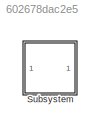
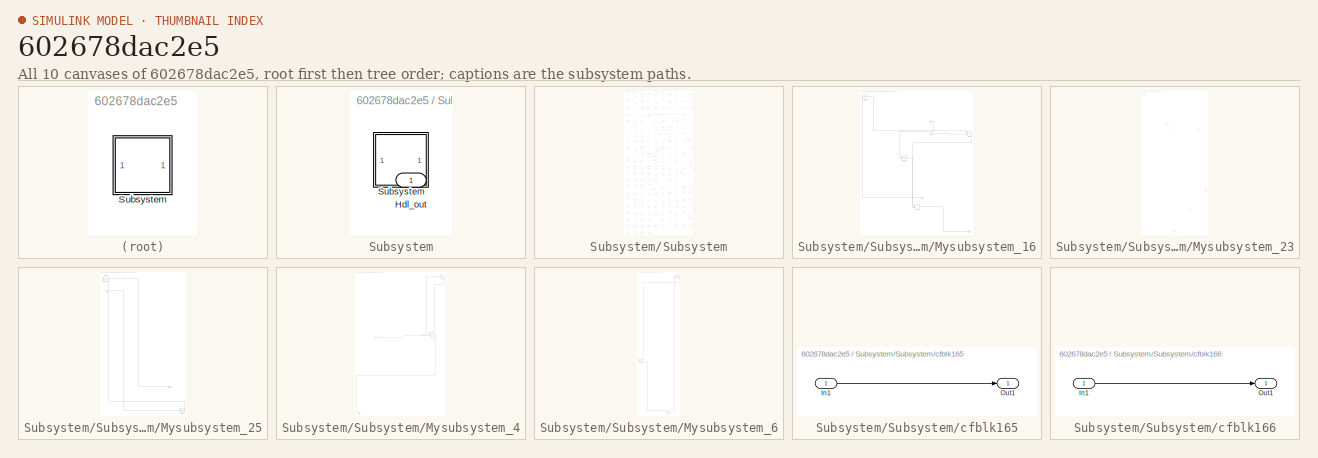
[diagram: thumbnail index - all 10 canvases of the model, root first then tree order]
MODEL slx_602678dac2e5
KIND model
CONFIG AbsTol = auto
CONFIG EnableMultiTasking = off
CONFIG FixedStep = auto
CONFIG MaxStep = auto
CONFIG MinStep = auto
CONFIG RelTol = 1e-3
CONFIG SampleTimeConstraint = Unconstrained
CONFIG SolverName = VariableStepAuto
CONFIG StartTime = 0.0
CONFIG StopTime = 10.0
BLOCK [SubSystem] Subsystem
BLOCK [Outport] Subsystem/Hdl_out
  OutDataTypeStr = uint8
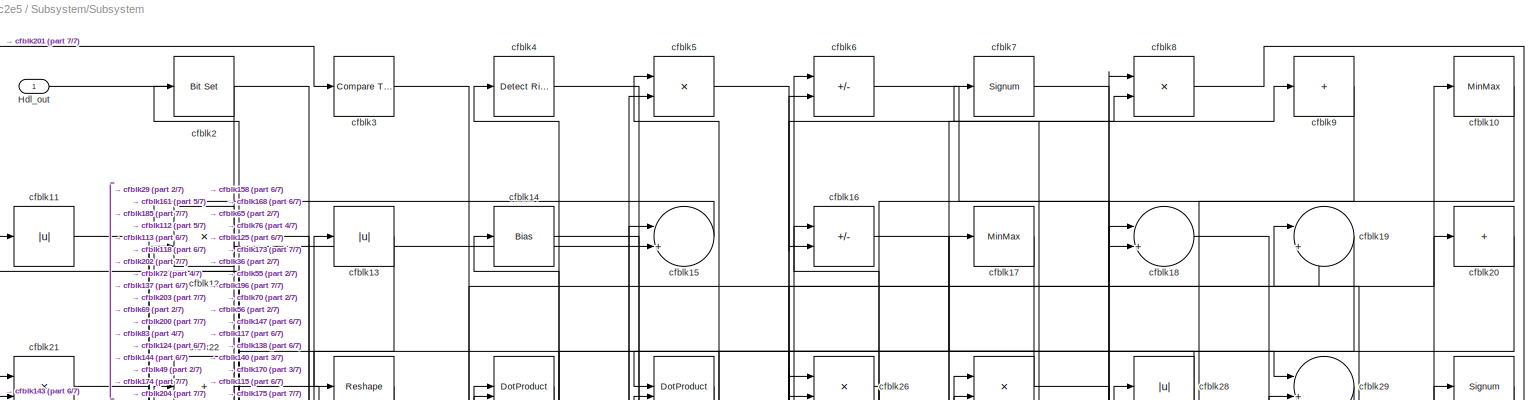
[diagram: Subsystem/Subsystem - part 1/7, full width, top band]
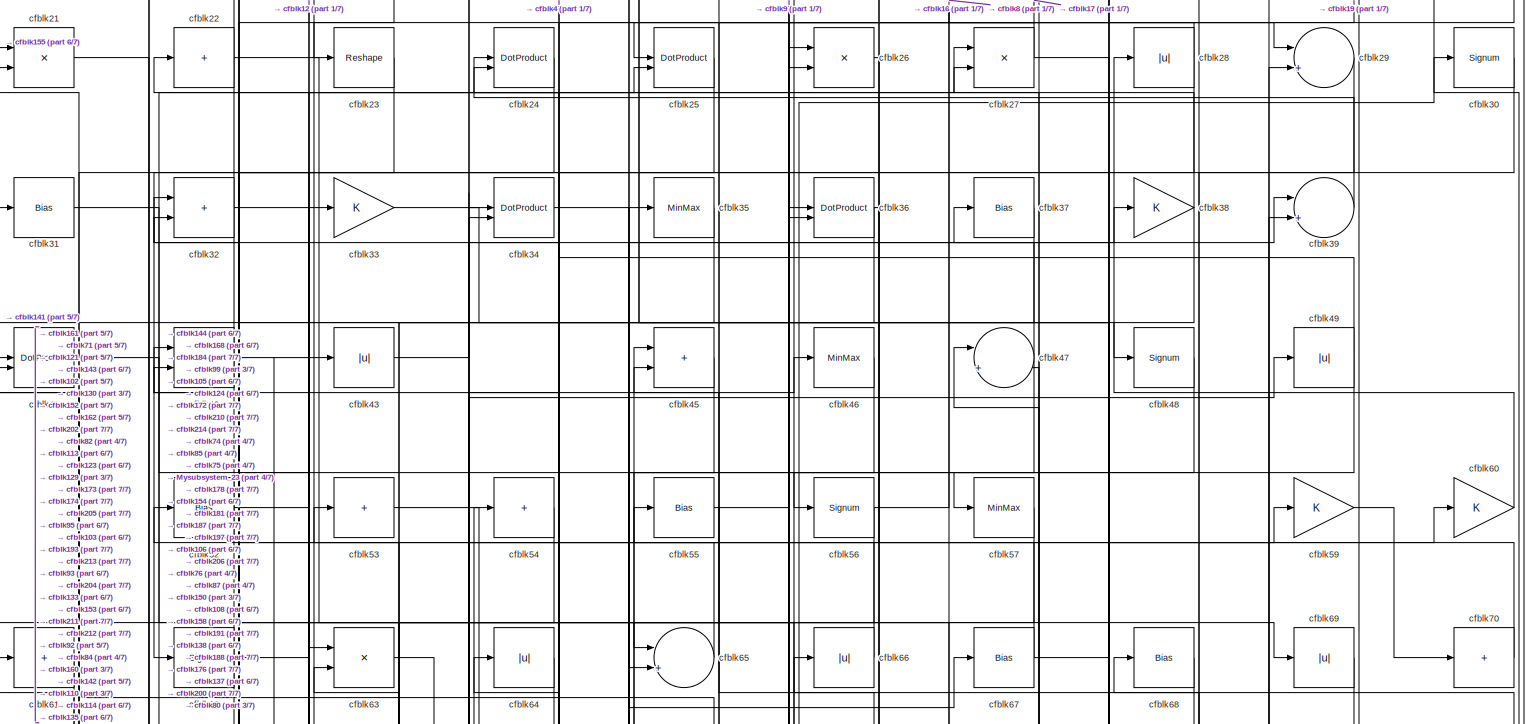
[diagram: Subsystem/Subsystem - part 2/7, full width, top band]
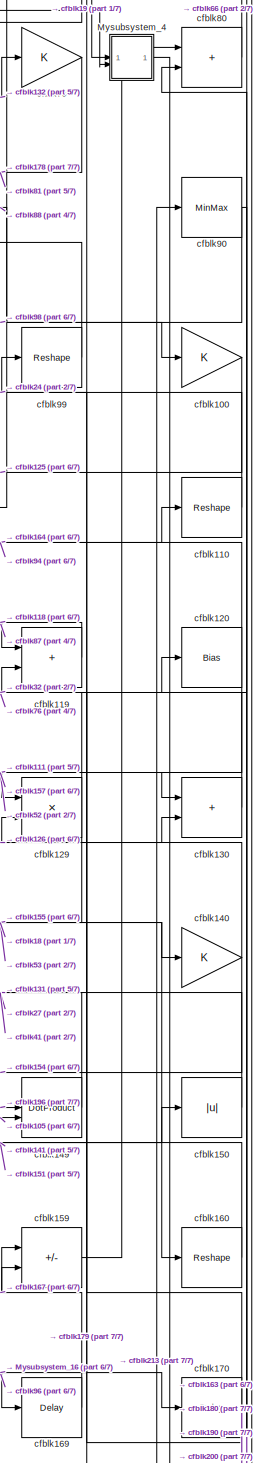
[diagram: Subsystem/Subsystem - part 3/7, middle right region]
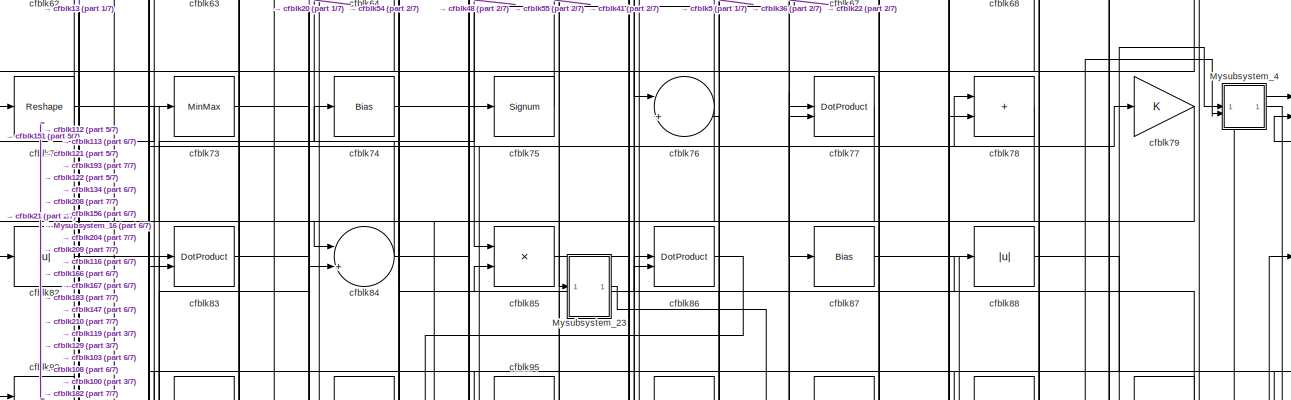
[diagram: Subsystem/Subsystem - part 4/7, full width, middle band]
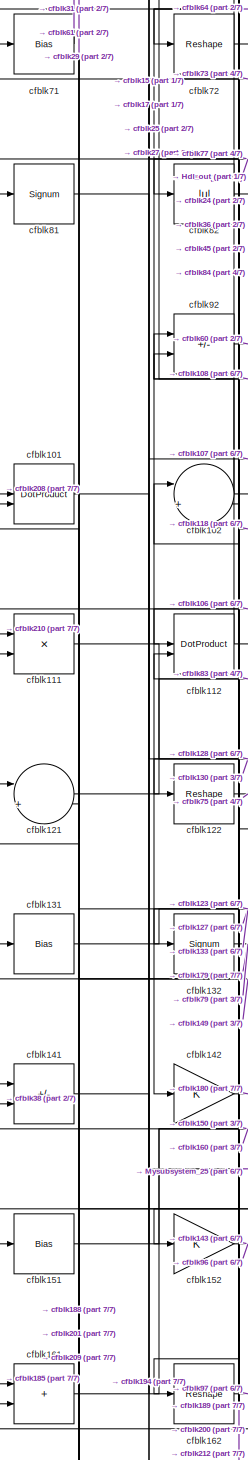
[diagram: Subsystem/Subsystem - part 5/7, middle left region]
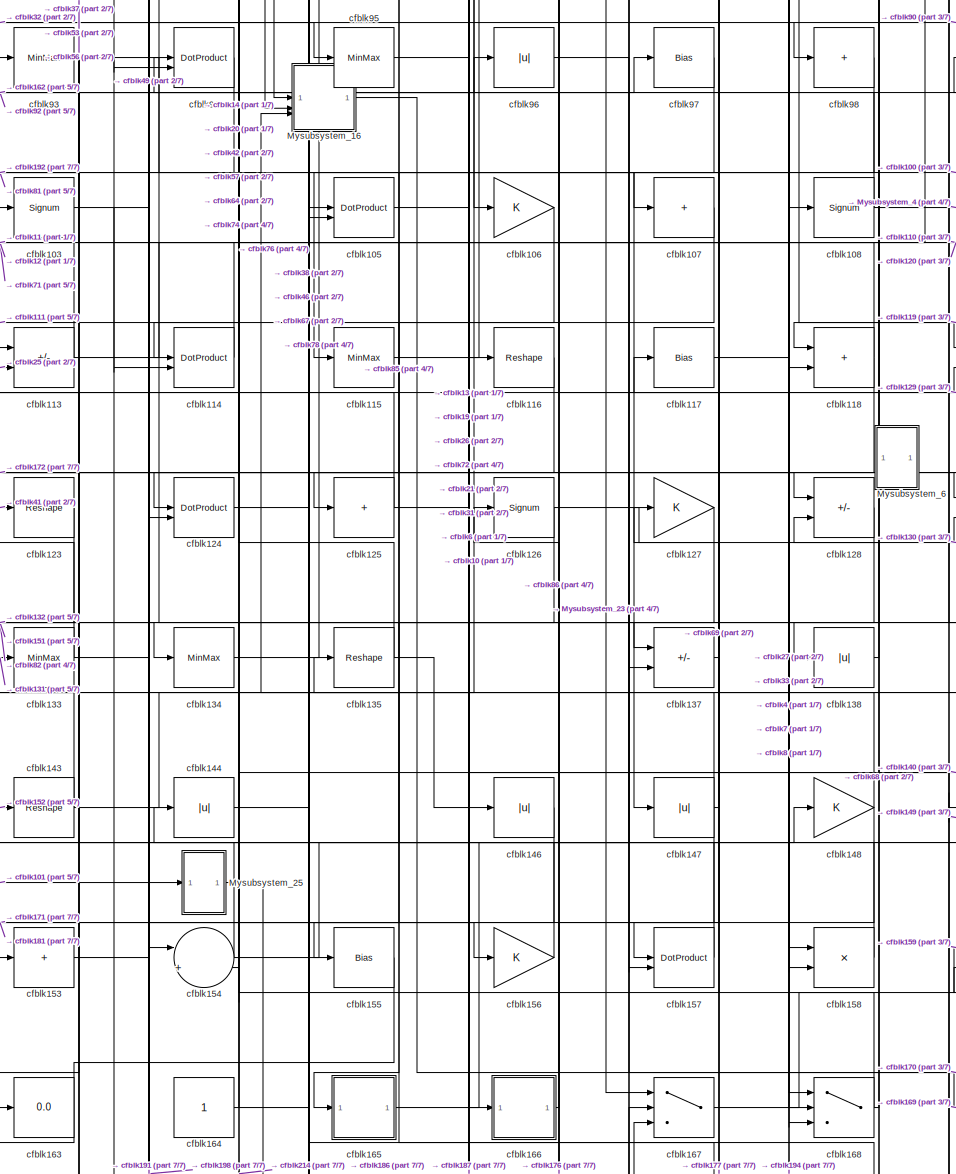
[diagram: Subsystem/Subsystem - part 6/7, central region]
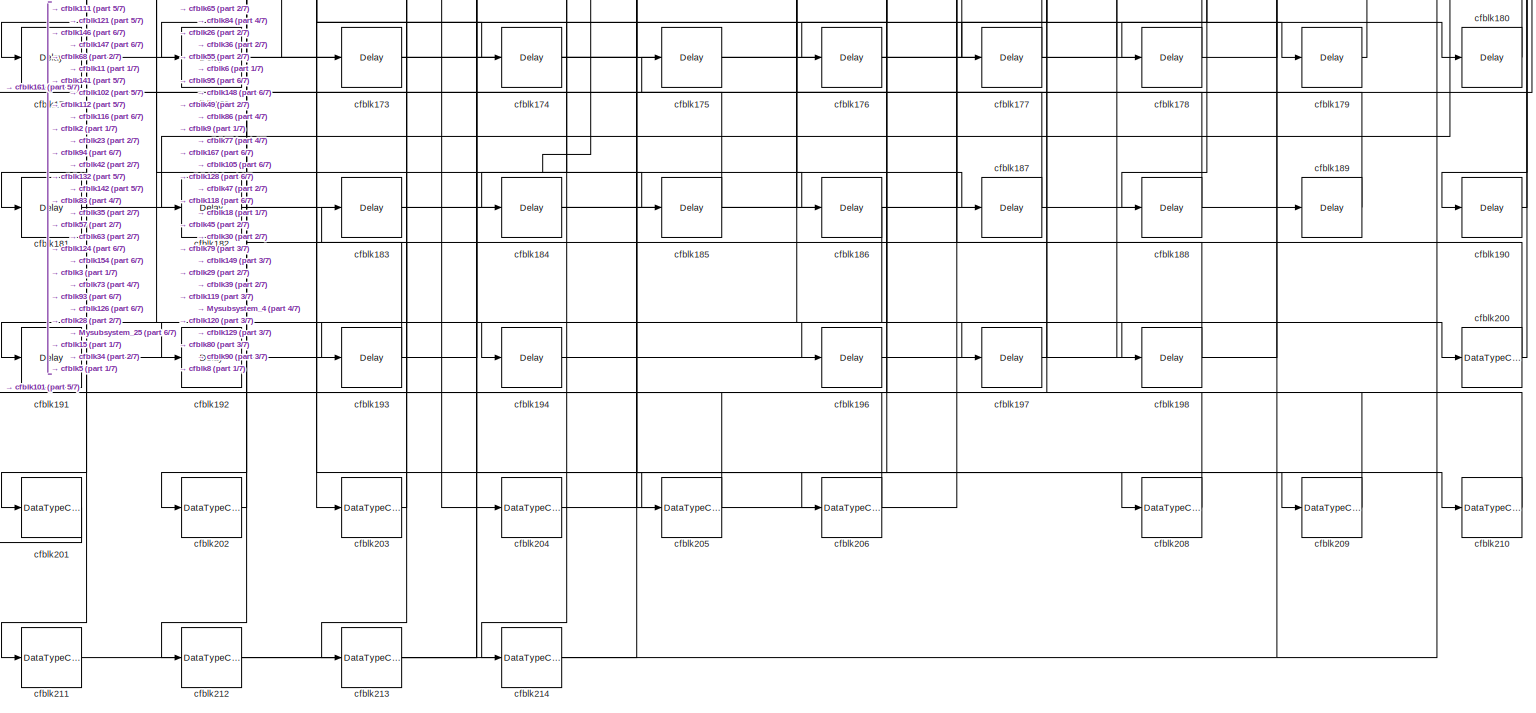
[diagram: Subsystem/Subsystem - part 7/7, full width, bottom band]
BLOCK [SubSystem] Subsystem/Subsystem
BLOCK [Outport] Subsystem/Subsystem/Hdl_out
  OutDataTypeStr = uint8
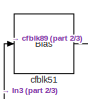
[diagram: Subsystem/Subsystem/Mysubsystem_16 - part 1/3, top left region]
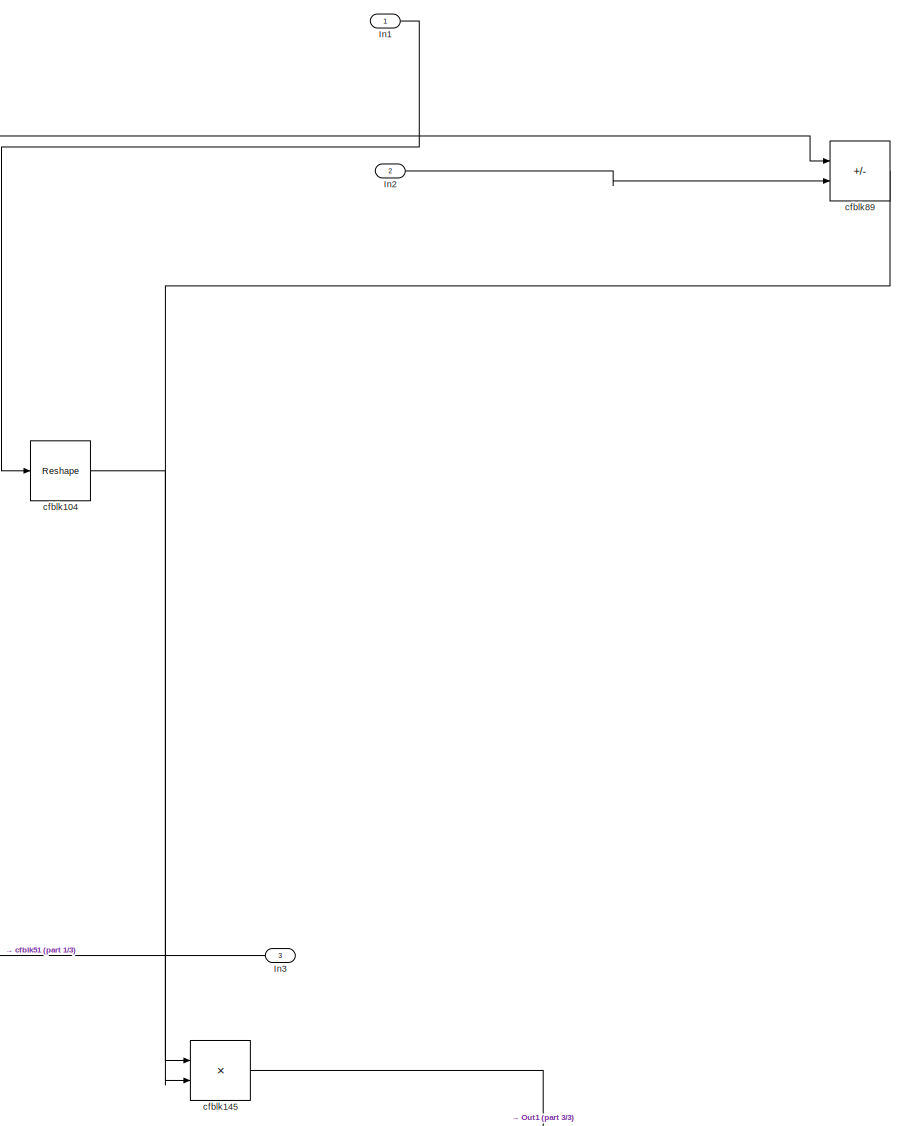
[diagram: Subsystem/Subsystem/Mysubsystem_16 - part 2/3, middle right region]
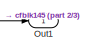
[diagram: Subsystem/Subsystem/Mysubsystem_16 - part 3/3, bottom right region]
BLOCK [SubSystem] Subsystem/Subsystem/Mysubsystem_16
  RTWFcnName = Mysubsystem_16
  RTWFcnNameOpts = User specified
  RTWFileNameOpts = Use function name
  RTWSystemCode = Reusable function
  TreatAsAtomicUnit = on
BLOCK [Inport] Subsystem/Subsystem/Mysubsystem_16/In1
BLOCK [Inport] Subsystem/Subsystem/Mysubsystem_16/In2
  Port = 2
BLOCK [Inport] Subsystem/Subsystem/Mysubsystem_16/In3
  Port = 3
BLOCK [Outport] Subsystem/Subsystem/Mysubsystem_16/Out1
BLOCK [Reshape] Subsystem/Subsystem/Mysubsystem_16/cfblk104
BLOCK [Product] Subsystem/Subsystem/Mysubsystem_16/cfblk145
  Inputs = */
  RndMeth = Zero
  SaturateOnIntegerOverflow = on
BLOCK [Bias] Subsystem/Subsystem/Mysubsystem_16/cfblk51
  Bias = 0.0
  SaturateOnIntegerOverflow = off
BLOCK [Sum] Subsystem/Subsystem/Mysubsystem_16/cfblk89
  IconShape = rectangular
  Inputs = +-
BLOCK [SubSystem] Subsystem/Subsystem/Mysubsystem_23
  RTWFcnName = Mysubsystem_23
  RTWFcnNameOpts = User specified
  RTWFileNameOpts = Use function name
  RTWSystemCode = Reusable function
  TreatAsAtomicUnit = on
BLOCK [Inport] Subsystem/Subsystem/Mysubsystem_23/In1
BLOCK [Outport] Subsystem/Subsystem/Mysubsystem_23/Out1
BLOCK [Reference] Subsystem/Subsystem/Mysubsystem_23/cfblk1  REF=simulink/Logic and Bit
Operations/Detect
Increase
  LibrarySourceBlock = hdlsllib/Logic and Bit\nOperations/Detect\nIncrease
  SourceBlock = simulink/Logic and Bit\nOperations/Detect\nIncrease
  SourceType = Detect Increase
BLOCK [Signum] Subsystem/Subsystem/Mysubsystem_23/cfblk139
BLOCK [Delay] Subsystem/Subsystem/Mysubsystem_23/cfblk195
  InputPortMap = u0
  SampleTime = 1
BLOCK [MinMax] Subsystem/Subsystem/Mysubsystem_23/cfblk44
BLOCK [Bias] Subsystem/Subsystem/Mysubsystem_23/cfblk58
  Bias = 0.0
  SaturateOnIntegerOverflow = off
BLOCK [SubSystem] Subsystem/Subsystem/Mysubsystem_25
  RTWFcnName = Mysubsystem_25
  RTWFcnNameOpts = User specified
  RTWFileNameOpts = Use function name
  RTWSystemCode = Reusable function
  TreatAsAtomicUnit = on
BLOCK [Inport] Subsystem/Subsystem/Mysubsystem_25/In1
BLOCK [Outport] Subsystem/Subsystem/Mysubsystem_25/Out1
BLOCK [DataTypeConversion] Subsystem/Subsystem/Mysubsystem_25/cfblk207
  OutDataTypeStr = uint8
  RndMeth = Floor
  SaturateOnIntegerOverflow = off
BLOCK [Signum] Subsystem/Subsystem/Mysubsystem_25/cfblk91
BLOCK [SubSystem] Subsystem/Subsystem/Mysubsystem_4
  RTWFcnName = Mysubsystem_4
  RTWFcnNameOpts = User specified
  RTWFileNameOpts = Use function name
  RTWSystemCode = Reusable function
  TreatAsAtomicUnit = on
BLOCK [Inport] Subsystem/Subsystem/Mysubsystem_4/In1
BLOCK [Inport] Subsystem/Subsystem/Mysubsystem_4/In2
  Port = 2
BLOCK [Outport] Subsystem/Subsystem/Mysubsystem_4/Out1
BLOCK [Product] Subsystem/Subsystem/Mysubsystem_4/cfblk109
  Inputs = */
  RndMeth = Zero
  SaturateOnIntegerOverflow = on
BLOCK [Abs] Subsystem/Subsystem/Mysubsystem_4/cfblk50
  SaturateOnIntegerOverflow = off
BLOCK [SubSystem] Subsystem/Subsystem/Mysubsystem_6
  RTWFcnName = Mysubsystem_6
  RTWFcnNameOpts = User specified
  RTWFileNameOpts = Use function name
  RTWSystemCode = Reusable function
  TreatAsAtomicUnit = on
BLOCK [Reshape] Subsystem/Subsystem/Mysubsystem_6/cfblk136
BLOCK [Delay] Subsystem/Subsystem/Mysubsystem_6/cfblk199
  InputPortMap = u0
  SampleTime = 1
BLOCK [MinMax] Subsystem/Subsystem/Mysubsystem_6/cfblk40
BLOCK [MinMax] Subsystem/Subsystem/cfblk10
  OutDataTypeStr = uint8
BLOCK [Gain] Subsystem/Subsystem/cfblk100
  OutDataTypeStr = uint8
BLOCK [DotProduct] Subsystem/Subsystem/cfblk101
  OutDataTypeStr = uint8
BLOCK [Sum] Subsystem/Subsystem/cfblk102
  Inputs = |++
  OutDataTypeStr = uint8
BLOCK [Signum] Subsystem/Subsystem/cfblk103
BLOCK [DotProduct] Subsystem/Subsystem/cfblk105
  OutDataTypeStr = uint8
BLOCK [Gain] Subsystem/Subsystem/cfblk106
  OutDataTypeStr = uint8
BLOCK [Sum] Subsystem/Subsystem/cfblk107
  IconShape = rectangular
  Inputs = +
  OutDataTypeStr = uint8
BLOCK [Signum] Subsystem/Subsystem/cfblk108
BLOCK [Abs] Subsystem/Subsystem/cfblk11
  OutDataTypeStr = uint8
  SaturateOnIntegerOverflow = off
BLOCK [Reshape] Subsystem/Subsystem/cfblk110
BLOCK [Product] Subsystem/Subsystem/cfblk111
  Inputs = */
  OutDataTypeStr = uint8
  RndMeth = Zero
  SaturateOnIntegerOverflow = on
BLOCK [DotProduct] Subsystem/Subsystem/cfblk112
  OutDataTypeStr = uint8
BLOCK [Sum] Subsystem/Subsystem/cfblk113
  IconShape = rectangular
  Inputs = +-
  OutDataTypeStr = uint8
BLOCK [DotProduct] Subsystem/Subsystem/cfblk114
  OutDataTypeStr = uint8
BLOCK [MinMax] Subsystem/Subsystem/cfblk115
  OutDataTypeStr = uint8
BLOCK [Reshape] Subsystem/Subsystem/cfblk116
BLOCK [Bias] Subsystem/Subsystem/cfblk117
  Bias = 0.0
  SaturateOnIntegerOverflow = off
BLOCK [Sum] Subsystem/Subsystem/cfblk118
  IconShape = rectangular
  OutDataTypeStr = uint8
BLOCK [Sum] Subsystem/Subsystem/cfblk119
  IconShape = rectangular
  OutDataTypeStr = uint8
BLOCK [Product] Subsystem/Subsystem/cfblk12
  Inputs = */
  OutDataTypeStr = uint8
  RndMeth = Zero
  SaturateOnIntegerOverflow = on
BLOCK [Bias] Subsystem/Subsystem/cfblk120
  Bias = 0.0
  SaturateOnIntegerOverflow = off
BLOCK [Sum] Subsystem/Subsystem/cfblk121
  Inputs = |++
  OutDataTypeStr = uint8
BLOCK [Reshape] Subsystem/Subsystem/cfblk122
BLOCK [Reshape] Subsystem/Subsystem/cfblk123
BLOCK [DotProduct] Subsystem/Subsystem/cfblk124
  OutDataTypeStr = uint8
BLOCK [Sum] Subsystem/Subsystem/cfblk125
  IconShape = rectangular
  Inputs = +
  OutDataTypeStr = uint8
BLOCK [Signum] Subsystem/Subsystem/cfblk126
BLOCK [Gain] Subsystem/Subsystem/cfblk127
  OutDataTypeStr = uint8
BLOCK [Sum] Subsystem/Subsystem/cfblk128
  IconShape = rectangular
  Inputs = +-
  OutDataTypeStr = uint8
BLOCK [Product] Subsystem/Subsystem/cfblk129
  Inputs = */
  OutDataTypeStr = uint8
  RndMeth = Zero
  SaturateOnIntegerOverflow = on
BLOCK [Abs] Subsystem/Subsystem/cfblk13
  OutDataTypeStr = uint8
  SaturateOnIntegerOverflow = off
BLOCK [Sum] Subsystem/Subsystem/cfblk130
  IconShape = rectangular
  OutDataTypeStr = uint8
BLOCK [Bias] Subsystem/Subsystem/cfblk131
  Bias = 0.0
  SaturateOnIntegerOverflow = off
BLOCK [Signum] Subsystem/Subsystem/cfblk132
BLOCK [MinMax] Subsystem/Subsystem/cfblk133
  OutDataTypeStr = uint8
BLOCK [MinMax] Subsystem/Subsystem/cfblk134
  OutDataTypeStr = uint8
BLOCK [Reshape] Subsystem/Subsystem/cfblk135
BLOCK [Sum] Subsystem/Subsystem/cfblk137
  IconShape = rectangular
  Inputs = +-
  OutDataTypeStr = uint8
BLOCK [Abs] Subsystem/Subsystem/cfblk138
  OutDataTypeStr = uint8
  SaturateOnIntegerOverflow = off
BLOCK [Bias] Subsystem/Subsystem/cfblk14
  Bias = 0.0
  SaturateOnIntegerOverflow = off
BLOCK [Gain] Subsystem/Subsystem/cfblk140
  OutDataTypeStr = uint8
BLOCK [Sum] Subsystem/Subsystem/cfblk141
  IconShape = rectangular
  Inputs = +-
  OutDataTypeStr = uint8
BLOCK [Gain] Subsystem/Subsystem/cfblk142
  OutDataTypeStr = uint8
BLOCK [Reshape] Subsystem/Subsystem/cfblk143
BLOCK [Abs] Subsystem/Subsystem/cfblk144
  OutDataTypeStr = uint8
  SaturateOnIntegerOverflow = off
BLOCK [Abs] Subsystem/Subsystem/cfblk146
  OutDataTypeStr = uint8
  SaturateOnIntegerOverflow = off
BLOCK [Abs] Subsystem/Subsystem/cfblk147
  OutDataTypeStr = uint8
  SaturateOnIntegerOverflow = off
BLOCK [Gain] Subsystem/Subsystem/cfblk148
  OutDataTypeStr = uint8
BLOCK [DotProduct] Subsystem/Subsystem/cfblk149
  OutDataTypeStr = uint8
BLOCK [Sum] Subsystem/Subsystem/cfblk15
  Inputs = |++
  OutDataTypeStr = uint8
BLOCK [Abs] Subsystem/Subsystem/cfblk150
  OutDataTypeStr = uint8
  SaturateOnIntegerOverflow = off
BLOCK [Bias] Subsystem/Subsystem/cfblk151
  Bias = 0.0
  SaturateOnIntegerOverflow = off
BLOCK [Gain] Subsystem/Subsystem/cfblk152
  OutDataTypeStr = uint8
BLOCK [Sum] Subsystem/Subsystem/cfblk153
  IconShape = rectangular
  Inputs = +
  OutDataTypeStr = uint8
BLOCK [Sum] Subsystem/Subsystem/cfblk154
  Inputs = |++
  OutDataTypeStr = uint8
BLOCK [Bias] Subsystem/Subsystem/cfblk155
  Bias = 0.0
  SaturateOnIntegerOverflow = off
BLOCK [Gain] Subsystem/Subsystem/cfblk156
  OutDataTypeStr = uint8
BLOCK [DotProduct] Subsystem/Subsystem/cfblk157
  OutDataTypeStr = uint8
BLOCK [Product] Subsystem/Subsystem/cfblk158
  Inputs = */
  OutDataTypeStr = uint8
  RndMeth = Zero
  SaturateOnIntegerOverflow = on
BLOCK [Sum] Subsystem/Subsystem/cfblk159
  IconShape = rectangular
  Inputs = +-
  OutDataTypeStr = uint8
BLOCK [Sum] Subsystem/Subsystem/cfblk16
  IconShape = rectangular
  Inputs = +-
  OutDataTypeStr = uint8
BLOCK [Reshape] Subsystem/Subsystem/cfblk160
BLOCK [Sum] Subsystem/Subsystem/cfblk161
  IconShape = rectangular
  OutDataTypeStr = uint8
BLOCK [Reshape] Subsystem/Subsystem/cfblk162
BLOCK [Display] Subsystem/Subsystem/cfblk163
  Decimation = 1
BLOCK [Constant] Subsystem/Subsystem/cfblk164
  OutDataTypeStr = uint8
  SampleTime = -1
BLOCK [SubSystem] Subsystem/Subsystem/cfblk165
  LibrarySourceBlock = hdlsllib/Ports &\nSubsystems/Subsystem
BLOCK [Inport] Subsystem/Subsystem/cfblk165/In1
BLOCK [Outport] Subsystem/Subsystem/cfblk165/Out1
BLOCK [SubSystem] Subsystem/Subsystem/cfblk166
  LibrarySourceBlock = hdlsllib/Ports &\nSubsystems/Subsystem
BLOCK [Inport] Subsystem/Subsystem/cfblk166/In1
BLOCK [Outport] Subsystem/Subsystem/cfblk166/Out1
BLOCK [Switch] Subsystem/Subsystem/cfblk167
  InputSameDT = off
  OutDataTypeStr = uint8
  SaturateOnIntegerOverflow = off
BLOCK [Switch] Subsystem/Subsystem/cfblk168
  InputSameDT = off
  OutDataTypeStr = uint8
  SaturateOnIntegerOverflow = off
BLOCK [Delay] Subsystem/Subsystem/cfblk169
  InputPortMap = u0
  SampleTime = 1
BLOCK [MinMax] Subsystem/Subsystem/cfblk17
  OutDataTypeStr = uint8
BLOCK [Delay] Subsystem/Subsystem/cfblk170
  InputPortMap = u0
  SampleTime = 1
BLOCK [Delay] Subsystem/Subsystem/cfblk171
  InputPortMap = u0
  SampleTime = 1
BLOCK [Delay] Subsystem/Subsystem/cfblk172
  InputPortMap = u0
  SampleTime = 1
BLOCK [Delay] Subsystem/Subsystem/cfblk173
  InputPortMap = u0
  SampleTime = 1
BLOCK [Delay] Subsystem/Subsystem/cfblk174
  InputPortMap = u0
  SampleTime = 1
BLOCK [Delay] Subsystem/Subsystem/cfblk175
  InputPortMap = u0
  SampleTime = 1
BLOCK [Delay] Subsystem/Subsystem/cfblk176
  InputPortMap = u0
  SampleTime = 1
BLOCK [Delay] Subsystem/Subsystem/cfblk177
  InputPortMap = u0
  SampleTime = 1
BLOCK [Delay] Subsystem/Subsystem/cfblk178
  InputPortMap = u0
  SampleTime = 1
BLOCK [Delay] Subsystem/Subsystem/cfblk179
  InputPortMap = u0
  SampleTime = 1
BLOCK [Sum] Subsystem/Subsystem/cfblk18
  Inputs = |++
  OutDataTypeStr = uint8
BLOCK [Delay] Subsystem/Subsystem/cfblk180
  InputPortMap = u0
  SampleTime = 1
BLOCK [Delay] Subsystem/Subsystem/cfblk181
  InputPortMap = u0
  SampleTime = 1
BLOCK [Delay] Subsystem/Subsystem/cfblk182
  InputPortMap = u0
  SampleTime = 1
BLOCK [Delay] Subsystem/Subsystem/cfblk183
  InputPortMap = u0
  SampleTime = 1
BLOCK [Delay] Subsystem/Subsystem/cfblk184
  InputPortMap = u0
  SampleTime = 1
BLOCK [Delay] Subsystem/Subsystem/cfblk185
  InputPortMap = u0
  SampleTime = 1
BLOCK [Delay] Subsystem/Subsystem/cfblk186
  InputPortMap = u0
  SampleTime = 1
BLOCK [Delay] Subsystem/Subsystem/cfblk187
  InputPortMap = u0
  SampleTime = 1
BLOCK [Delay] Subsystem/Subsystem/cfblk188
  InputPortMap = u0
  SampleTime = 1
BLOCK [Delay] Subsystem/Subsystem/cfblk189
  InputPortMap = u0
  SampleTime = 1
BLOCK [Sum] Subsystem/Subsystem/cfblk19
  Inputs = |++
  OutDataTypeStr = uint8
BLOCK [Delay] Subsystem/Subsystem/cfblk190
  InputPortMap = u0
  SampleTime = 1
BLOCK [Delay] Subsystem/Subsystem/cfblk191
  InputPortMap = u0
  SampleTime = 1
BLOCK [Delay] Subsystem/Subsystem/cfblk192
  InputPortMap = u0
  SampleTime = 1
BLOCK [Delay] Subsystem/Subsystem/cfblk193
  InputPortMap = u0
  SampleTime = 1
BLOCK [Delay] Subsystem/Subsystem/cfblk194
  InputPortMap = u0
  SampleTime = 1
BLOCK [Delay] Subsystem/Subsystem/cfblk196
  InputPortMap = u0
  SampleTime = 1
BLOCK [Delay] Subsystem/Subsystem/cfblk197
  InputPortMap = u0
  SampleTime = 1
BLOCK [Delay] Subsystem/Subsystem/cfblk198
  InputPortMap = u0
  SampleTime = 1
BLOCK [Reference] Subsystem/Subsystem/cfblk2  REF=simulink/Logic and Bit
Operations/Bit Set
  LibrarySourceBlock = hdlsllib/Logic and Bit\nOperations/Bit Set
  SourceBlock = simulink/Logic and Bit\nOperations/Bit Set
  SourceType = Bit Set
BLOCK [Sum] Subsystem/Subsystem/cfblk20
  IconShape = rectangular
  Inputs = +
  OutDataTypeStr = uint8
BLOCK [DataTypeConversion] Subsystem/Subsystem/cfblk200
  OutDataTypeStr = uint8
  RndMeth = Floor
  SaturateOnIntegerOverflow = off
BLOCK [DataTypeConversion] Subsystem/Subsystem/cfblk201
  OutDataTypeStr = uint8
  RndMeth = Floor
  SaturateOnIntegerOverflow = off
BLOCK [DataTypeConversion] Subsystem/Subsystem/cfblk202
  OutDataTypeStr = uint8
  RndMeth = Floor
  SaturateOnIntegerOverflow = off
BLOCK [DataTypeConversion] Subsystem/Subsystem/cfblk203
  OutDataTypeStr = uint8
  RndMeth = Floor
  SaturateOnIntegerOverflow = off
BLOCK [DataTypeConversion] Subsystem/Subsystem/cfblk204
  OutDataTypeStr = uint8
  RndMeth = Floor
  SaturateOnIntegerOverflow = off
BLOCK [DataTypeConversion] Subsystem/Subsystem/cfblk205
  OutDataTypeStr = uint8
  RndMeth = Floor
  SaturateOnIntegerOverflow = off
BLOCK [DataTypeConversion] Subsystem/Subsystem/cfblk206
  OutDataTypeStr = uint8
  RndMeth = Floor
  SaturateOnIntegerOverflow = off
BLOCK [DataTypeConversion] Subsystem/Subsystem/cfblk208
  OutDataTypeStr = uint8
  RndMeth = Floor
  SaturateOnIntegerOverflow = off
BLOCK [DataTypeConversion] Subsystem/Subsystem/cfblk209
  OutDataTypeStr = uint8
  RndMeth = Floor
  SaturateOnIntegerOverflow = off
BLOCK [Product] Subsystem/Subsystem/cfblk21
  Inputs = */
  OutDataTypeStr = uint8
  RndMeth = Zero
  SaturateOnIntegerOverflow = on
BLOCK [DataTypeConversion] Subsystem/Subsystem/cfblk210
  OutDataTypeStr = uint8
  RndMeth = Floor
  SaturateOnIntegerOverflow = off
BLOCK [DataTypeConversion] Subsystem/Subsystem/cfblk211
  OutDataTypeStr = uint8
  RndMeth = Floor
  SaturateOnIntegerOverflow = off
BLOCK [DataTypeConversion] Subsystem/Subsystem/cfblk212
  OutDataTypeStr = uint8
  RndMeth = Floor
  SaturateOnIntegerOverflow = off
BLOCK [DataTypeConversion] Subsystem/Subsystem/cfblk213
  OutDataTypeStr = uint8
  RndMeth = Floor
  SaturateOnIntegerOverflow = off
BLOCK [DataTypeConversion] Subsystem/Subsystem/cfblk214
  OutDataTypeStr = uint8
  RndMeth = Floor
  SaturateOnIntegerOverflow = off
BLOCK [Sum] Subsystem/Subsystem/cfblk22
  IconShape = rectangular
  Inputs = +
  OutDataTypeStr = uint8
BLOCK [Reshape] Subsystem/Subsystem/cfblk23
BLOCK [DotProduct] Subsystem/Subsystem/cfblk24
  OutDataTypeStr = uint8
BLOCK [DotProduct] Subsystem/Subsystem/cfblk25
  OutDataTypeStr = uint8
BLOCK [Product] Subsystem/Subsystem/cfblk26
  Inputs = */
  OutDataTypeStr = uint8
  RndMeth = Zero
  SaturateOnIntegerOverflow = on
BLOCK [Product] Subsystem/Subsystem/cfblk27
  Inputs = */
  OutDataTypeStr = uint8
  RndMeth = Zero
  SaturateOnIntegerOverflow = on
BLOCK [Abs] Subsystem/Subsystem/cfblk28
  OutDataTypeStr = uint8
  SaturateOnIntegerOverflow = off
BLOCK [Sum] Subsystem/Subsystem/cfblk29
  Inputs = |++
  OutDataTypeStr = uint8
BLOCK [Reference] Subsystem/Subsystem/cfblk3  REF=hdlsllib/Logic and Bit
Operations/Compare
To Zero
  SourceBlock = hdlsllib/Logic and Bit\nOperations/Compare\nTo Zero
  SourceType = Compare To Zero
BLOCK [Signum] Subsystem/Subsystem/cfblk30
BLOCK [Bias] Subsystem/Subsystem/cfblk31
  Bias = 0.0
  SaturateOnIntegerOverflow = off
BLOCK [Sum] Subsystem/Subsystem/cfblk32
  IconShape = rectangular
  OutDataTypeStr = uint8
BLOCK [Gain] Subsystem/Subsystem/cfblk33
  OutDataTypeStr = uint8
BLOCK [DotProduct] Subsystem/Subsystem/cfblk34
  OutDataTypeStr = uint8
BLOCK [MinMax] Subsystem/Subsystem/cfblk35
  OutDataTypeStr = uint8
BLOCK [DotProduct] Subsystem/Subsystem/cfblk36
  OutDataTypeStr = uint8
BLOCK [Bias] Subsystem/Subsystem/cfblk37
  Bias = 0.0
  SaturateOnIntegerOverflow = off
BLOCK [Gain] Subsystem/Subsystem/cfblk38
  OutDataTypeStr = uint8
BLOCK [Sum] Subsystem/Subsystem/cfblk39
  Inputs = |++
  OutDataTypeStr = uint8
BLOCK [Reference] Subsystem/Subsystem/cfblk4  REF=hdlsllib/Logic and Bit
Operations/Detect Rise
Positive
  SourceBlock = hdlsllib/Logic and Bit\nOperations/Detect Rise\nPositive
  SourceType = Detect Rise Positive
BLOCK [DotProduct] Subsystem/Subsystem/cfblk41
  OutDataTypeStr = uint8
BLOCK [Product] Subsystem/Subsystem/cfblk42
  Inputs = */
  OutDataTypeStr = uint8
  RndMeth = Zero
  SaturateOnIntegerOverflow = on
BLOCK [Abs] Subsystem/Subsystem/cfblk43
  OutDataTypeStr = uint8
  SaturateOnIntegerOverflow = off
BLOCK [Sum] Subsystem/Subsystem/cfblk45
  IconShape = rectangular
  OutDataTypeStr = uint8
BLOCK [MinMax] Subsystem/Subsystem/cfblk46
  OutDataTypeStr = uint8
BLOCK [Sum] Subsystem/Subsystem/cfblk47
  Inputs = |++
  OutDataTypeStr = uint8
BLOCK [Signum] Subsystem/Subsystem/cfblk48
BLOCK [Abs] Subsystem/Subsystem/cfblk49
  OutDataTypeStr = uint8
  SaturateOnIntegerOverflow = off
BLOCK [Product] Subsystem/Subsystem/cfblk5
  Inputs = */
  OutDataTypeStr = uint8
  RndMeth = Zero
  SaturateOnIntegerOverflow = on
BLOCK [Bias] Subsystem/Subsystem/cfblk52
  Bias = 0.0
  SaturateOnIntegerOverflow = off
BLOCK [Sum] Subsystem/Subsystem/cfblk53
  IconShape = rectangular
  Inputs = +
  OutDataTypeStr = uint8
BLOCK [Sum] Subsystem/Subsystem/cfblk54
  IconShape = rectangular
  Inputs = +
  OutDataTypeStr = uint8
BLOCK [Bias] Subsystem/Subsystem/cfblk55
  Bias = 0.0
  SaturateOnIntegerOverflow = off
BLOCK [Signum] Subsystem/Subsystem/cfblk56
BLOCK [MinMax] Subsystem/Subsystem/cfblk57
  OutDataTypeStr = uint8
BLOCK [Gain] Subsystem/Subsystem/cfblk59
  OutDataTypeStr = uint8
BLOCK [Sum] Subsystem/Subsystem/cfblk6
  IconShape = rectangular
  Inputs = +-
  OutDataTypeStr = uint8
BLOCK [Gain] Subsystem/Subsystem/cfblk60
  OutDataTypeStr = uint8
BLOCK [Sum] Subsystem/Subsystem/cfblk61
  IconShape = rectangular
  Inputs = +
  OutDataTypeStr = uint8
BLOCK [Signum] Subsystem/Subsystem/cfblk62
BLOCK [Product] Subsystem/Subsystem/cfblk63
  Inputs = */
  OutDataTypeStr = uint8
  RndMeth = Zero
  SaturateOnIntegerOverflow = on
BLOCK [Abs] Subsystem/Subsystem/cfblk64
  OutDataTypeStr = uint8
  SaturateOnIntegerOverflow = off
BLOCK [Sum] Subsystem/Subsystem/cfblk65
  Inputs = |++
  OutDataTypeStr = uint8
BLOCK [Abs] Subsystem/Subsystem/cfblk66
  OutDataTypeStr = uint8
  SaturateOnIntegerOverflow = off
BLOCK [Bias] Subsystem/Subsystem/cfblk67
  Bias = 0.0
  SaturateOnIntegerOverflow = off
BLOCK [Bias] Subsystem/Subsystem/cfblk68
  Bias = 0.0
  SaturateOnIntegerOverflow = off
BLOCK [Abs] Subsystem/Subsystem/cfblk69
  OutDataTypeStr = uint8
  SaturateOnIntegerOverflow = off
BLOCK [Signum] Subsystem/Subsystem/cfblk7
BLOCK [Sum] Subsystem/Subsystem/cfblk70
  IconShape = rectangular
  Inputs = +
  OutDataTypeStr = uint8
BLOCK [Bias] Subsystem/Subsystem/cfblk71
  Bias = 0.0
  SaturateOnIntegerOverflow = off
BLOCK [Reshape] Subsystem/Subsystem/cfblk72
BLOCK [MinMax] Subsystem/Subsystem/cfblk73
  OutDataTypeStr = uint8
BLOCK [Bias] Subsystem/Subsystem/cfblk74
  Bias = 0.0
  SaturateOnIntegerOverflow = off
BLOCK [Signum] Subsystem/Subsystem/cfblk75
BLOCK [Sum] Subsystem/Subsystem/cfblk76
  Inputs = |++
  OutDataTypeStr = uint8
BLOCK [DotProduct] Subsystem/Subsystem/cfblk77
  OutDataTypeStr = uint8
BLOCK [Sum] Subsystem/Subsystem/cfblk78
  IconShape = rectangular
  OutDataTypeStr = uint8
BLOCK [Gain] Subsystem/Subsystem/cfblk79
  OutDataTypeStr = uint8
BLOCK [Product] Subsystem/Subsystem/cfblk8
  Inputs = */
  OutDataTypeStr = uint8
  RndMeth = Zero
  SaturateOnIntegerOverflow = on
BLOCK [Sum] Subsystem/Subsystem/cfblk80
  IconShape = rectangular
  OutDataTypeStr = uint8
BLOCK [Signum] Subsystem/Subsystem/cfblk81
BLOCK [Abs] Subsystem/Subsystem/cfblk82
  OutDataTypeStr = uint8
  SaturateOnIntegerOverflow = off
BLOCK [DotProduct] Subsystem/Subsystem/cfblk83
  OutDataTypeStr = uint8
BLOCK [Sum] Subsystem/Subsystem/cfblk84
  Inputs = |++
  OutDataTypeStr = uint8
BLOCK [Product] Subsystem/Subsystem/cfblk85
  Inputs = */
  OutDataTypeStr = uint8
  RndMeth = Zero
  SaturateOnIntegerOverflow = on
BLOCK [DotProduct] Subsystem/Subsystem/cfblk86
  OutDataTypeStr = uint8
BLOCK [Bias] Subsystem/Subsystem/cfblk87
  Bias = 0.0
  SaturateOnIntegerOverflow = off
BLOCK [Abs] Subsystem/Subsystem/cfblk88
  OutDataTypeStr = uint8
  SaturateOnIntegerOverflow = off
BLOCK [Sum] Subsystem/Subsystem/cfblk9
  IconShape = rectangular
  Inputs = +
  OutDataTypeStr = uint8
BLOCK [MinMax] Subsystem/Subsystem/cfblk90
  OutDataTypeStr = uint8
BLOCK [Sum] Subsystem/Subsystem/cfblk92
  IconShape = rectangular
  Inputs = +-
  OutDataTypeStr = uint8
BLOCK [MinMax] Subsystem/Subsystem/cfblk93
  OutDataTypeStr = uint8
BLOCK [DotProduct] Subsystem/Subsystem/cfblk94
  OutDataTypeStr = uint8
BLOCK [MinMax] Subsystem/Subsystem/cfblk95
  OutDataTypeStr = uint8
BLOCK [Abs] Subsystem/Subsystem/cfblk96
  OutDataTypeStr = uint8
  SaturateOnIntegerOverflow = off
BLOCK [Bias] Subsystem/Subsystem/cfblk97
  Bias = 0.0
  SaturateOnIntegerOverflow = off
BLOCK [Sum] Subsystem/Subsystem/cfblk98
  IconShape = rectangular
  Inputs = +
  OutDataTypeStr = uint8
BLOCK [Reshape] Subsystem/Subsystem/cfblk99
LINE Subsystem/Subsystem/Mysubsystem_16/In1:1 -> Subsystem/Subsystem/Mysubsystem_16/cfblk104:1
LINE Subsystem/Subsystem/Mysubsystem_16/In2:1 -> Subsystem/Subsystem/Mysubsystem_16/cfblk89:2
LINE Subsystem/Subsystem/Mysubsystem_16/In3:1 -> Subsystem/Subsystem/Mysubsystem_16/cfblk51:1
LINE Subsystem/Subsystem/Mysubsystem_16/cfblk104:1 -> Subsystem/Subsystem/Mysubsystem_16/cfblk145:1
LINE Subsystem/Subsystem/Mysubsystem_16/cfblk145:1 -> Subsystem/Subsystem/Mysubsystem_16/Out1:1
LINE Subsystem/Subsystem/Mysubsystem_16/cfblk51:1 -> Subsystem/Subsystem/Mysubsystem_16/cfblk89:1
LINE Subsystem/Subsystem/Mysubsystem_16/cfblk89:1 -> Subsystem/Subsystem/Mysubsystem_16/cfblk145:2
LINE Subsystem/Subsystem/Mysubsystem_16:1 -> Subsystem/Subsystem/cfblk169:1
LINE Subsystem/Subsystem/Mysubsystem_23/In1:1 -> Subsystem/Subsystem/Mysubsystem_23/cfblk195:1
LINE Subsystem/Subsystem/Mysubsystem_23/cfblk139:1 -> Subsystem/Subsystem/Mysubsystem_23/cfblk58:1
LINE Subsystem/Subsystem/Mysubsystem_23/cfblk195:1 -> Subsystem/Subsystem/Mysubsystem_23/cfblk1:1
LINE Subsystem/Subsystem/Mysubsystem_23/cfblk1:1 -> Subsystem/Subsystem/Mysubsystem_23/cfblk44:1
LINE Subsystem/Subsystem/Mysubsystem_23/cfblk44:1 -> Subsystem/Subsystem/Mysubsystem_23/cfblk139:1
LINE Subsystem/Subsystem/Mysubsystem_23/cfblk58:1 -> Subsystem/Subsystem/Mysubsystem_23/Out1:1
LINE Subsystem/Subsystem/Mysubsystem_23:1 -> Subsystem/Subsystem/cfblk167:1
LINE Subsystem/Subsystem/Mysubsystem_25/In1:1 -> Subsystem/Subsystem/Mysubsystem_25/cfblk207:1
LINE Subsystem/Subsystem/Mysubsystem_25/cfblk207:1 -> Subsystem/Subsystem/Mysubsystem_25/cfblk91:1
LINE Subsystem/Subsystem/Mysubsystem_25/cfblk91:1 -> Subsystem/Subsystem/Mysubsystem_25/Out1:1
LINE Subsystem/Subsystem/Mysubsystem_25:1 -> Subsystem/Subsystem/cfblk186:1
LINE Subsystem/Subsystem/Mysubsystem_4/In1:1 -> Subsystem/Subsystem/Mysubsystem_4/cfblk50:1
LINE Subsystem/Subsystem/Mysubsystem_4/In2:1 -> Subsystem/Subsystem/Mysubsystem_4/cfblk109:2
LINE Subsystem/Subsystem/Mysubsystem_4/cfblk109:1 -> Subsystem/Subsystem/Mysubsystem_4/Out1:1
LINE Subsystem/Subsystem/Mysubsystem_4/cfblk50:1 -> Subsystem/Subsystem/Mysubsystem_4/cfblk109:1
LINE Subsystem/Subsystem/Mysubsystem_4:1 -> Subsystem/Subsystem/cfblk182:1
LINE Subsystem/Subsystem/Mysubsystem_6/cfblk136:1 -> Subsystem/Subsystem/Mysubsystem_6/cfblk199:1
LINE Subsystem/Subsystem/Mysubsystem_6/cfblk199:1 -> Subsystem/Subsystem/Mysubsystem_6/cfblk40:1
LINE Subsystem/Subsystem/Mysubsystem_6/cfblk40:1 -> Subsystem/Subsystem/Mysubsystem_6/cfblk136:1
LINE Subsystem/Subsystem/cfblk100:1 -> Subsystem/Subsystem/cfblk125:1
LINE Subsystem/Subsystem/cfblk101:1 -> Subsystem/Subsystem/Mysubsystem_25:1
NET Subsystem/Subsystem/cfblk102:1 -> Subsystem/Subsystem/cfblk25:2, Subsystem/Subsystem/cfblk27:1
NET Subsystem/Subsystem/cfblk103:1 -> Subsystem/Subsystem/Mysubsystem_4:2, Subsystem/Subsystem/cfblk114:2, Subsystem/Subsystem/cfblk156:1
LINE Subsystem/Subsystem/cfblk105:1 -> Subsystem/Subsystem/cfblk149:2
LINE Subsystem/Subsystem/cfblk106:1 -> Subsystem/Subsystem/cfblk111:2
LINE Subsystem/Subsystem/cfblk107:1 -> Subsystem/Subsystem/cfblk165:1
NET Subsystem/Subsystem/cfblk108:1 -> Subsystem/Subsystem/Mysubsystem_4:1, Subsystem/Subsystem/cfblk92:1
LINE Subsystem/Subsystem/cfblk10:1 -> Subsystem/Subsystem/cfblk138:1
LINE Subsystem/Subsystem/cfblk110:1 -> Subsystem/Subsystem/cfblk24:2
NET Subsystem/Subsystem/cfblk111:1 -> Subsystem/Subsystem/cfblk130:1, Subsystem/Subsystem/cfblk201:1
NET Subsystem/Subsystem/cfblk112:1 -> Subsystem/Subsystem/Hdl_out:1, Subsystem/Subsystem/cfblk212:1, Subsystem/Subsystem/cfblk84:2
NET Subsystem/Subsystem/cfblk113:1 -> Subsystem/Subsystem/cfblk11:1, Subsystem/Subsystem/cfblk78:2
LINE Subsystem/Subsystem/cfblk114:1 -> Subsystem/Subsystem/cfblk53:1
LINE Subsystem/Subsystem/cfblk115:1 -> Subsystem/Subsystem/cfblk10:1
LINE Subsystem/Subsystem/cfblk116:1 -> Subsystem/Subsystem/cfblk172:1
LINE Subsystem/Subsystem/cfblk117:1 -> Subsystem/Subsystem/cfblk8:1
NET Subsystem/Subsystem/cfblk118:1 -> Subsystem/Subsystem/cfblk12:2, Subsystem/Subsystem/cfblk153:1, Subsystem/Subsystem/cfblk71:1
LINE Subsystem/Subsystem/cfblk119:1 -> Subsystem/Subsystem/cfblk118:1
LINE Subsystem/Subsystem/cfblk11:1 -> Subsystem/Subsystem/cfblk185:1
NET Subsystem/Subsystem/cfblk120:1 -> Subsystem/Subsystem/cfblk157:2, Subsystem/Subsystem/cfblk94:1
LINE Subsystem/Subsystem/cfblk121:1 -> Subsystem/Subsystem/cfblk83:2
LINE Subsystem/Subsystem/cfblk122:1 -> Subsystem/Subsystem/cfblk75:1
LINE Subsystem/Subsystem/cfblk123:1 -> Subsystem/Subsystem/cfblk132:1
LINE Subsystem/Subsystem/cfblk124:1 -> Subsystem/Subsystem/cfblk38:1
NET Subsystem/Subsystem/cfblk125:1 -> Subsystem/Subsystem/cfblk13:1, Subsystem/Subsystem/cfblk19:2
NET Subsystem/Subsystem/cfblk126:1 -> Subsystem/Subsystem/cfblk130:2, Subsystem/Subsystem/cfblk214:1
LINE Subsystem/Subsystem/cfblk127:1 -> Subsystem/Subsystem/cfblk151:1
LINE Subsystem/Subsystem/cfblk128:1 -> Subsystem/Subsystem/cfblk177:1
NET Subsystem/Subsystem/cfblk129:1 -> Subsystem/Subsystem/cfblk155:1, Subsystem/Subsystem/cfblk76:2, Subsystem/Subsystem/cfblk88:1
NET Subsystem/Subsystem/cfblk12:1 -> Subsystem/Subsystem/cfblk137:2, Subsystem/Subsystem/cfblk69:1
LINE Subsystem/Subsystem/cfblk130:1 -> Subsystem/Subsystem/cfblk32:1
LINE Subsystem/Subsystem/cfblk131:1 -> Subsystem/Subsystem/cfblk133:1
NET Subsystem/Subsystem/cfblk132:1 -> Subsystem/Subsystem/cfblk179:1, Subsystem/Subsystem/cfblk79:1
NET Subsystem/Subsystem/cfblk133:1 -> Subsystem/Subsystem/cfblk49:1, Subsystem/Subsystem/cfblk92:2
LINE Subsystem/Subsystem/cfblk134:1 -> Subsystem/Subsystem/cfblk78:1
NET Subsystem/Subsystem/cfblk135:1 -> Subsystem/Subsystem/cfblk146:1, Subsystem/Subsystem/cfblk64:1
LINE Subsystem/Subsystem/cfblk137:1 -> Subsystem/Subsystem/cfblk157:1
LINE Subsystem/Subsystem/cfblk138:1 -> Subsystem/Subsystem/cfblk68:1
LINE Subsystem/Subsystem/cfblk13:1 -> Subsystem/Subsystem/cfblk72:1
NET Subsystem/Subsystem/cfblk140:1 -> Subsystem/Subsystem/cfblk154:2, Subsystem/Subsystem/cfblk99:1
LINE Subsystem/Subsystem/cfblk141:1 -> Subsystem/Subsystem/cfblk194:1
LINE Subsystem/Subsystem/cfblk142:1 -> Subsystem/Subsystem/cfblk180:1
NET Subsystem/Subsystem/cfblk143:1 -> Subsystem/Subsystem/cfblk21:2, Subsystem/Subsystem/cfblk6:1
NET Subsystem/Subsystem/cfblk144:1 -> Subsystem/Subsystem/cfblk14:1, Subsystem/Subsystem/cfblk67:1
LINE Subsystem/Subsystem/cfblk146:1 -> Subsystem/Subsystem/cfblk181:1
NET Subsystem/Subsystem/cfblk147:1 -> Subsystem/Subsystem/Mysubsystem_16:3, Subsystem/Subsystem/cfblk171:1, Subsystem/Subsystem/cfblk7:1, Subsystem/Subsystem/cfblk85:2
NET Subsystem/Subsystem/cfblk148:1 -> Subsystem/Subsystem/cfblk117:1, Subsystem/Subsystem/cfblk176:1
LINE Subsystem/Subsystem/cfblk149:1 -> Subsystem/Subsystem/cfblk131:1
LINE Subsystem/Subsystem/cfblk14:1 -> Subsystem/Subsystem/cfblk168:1
NET Subsystem/Subsystem/cfblk150:1 -> Subsystem/Subsystem/cfblk27:2, Subsystem/Subsystem/cfblk41:2
NET Subsystem/Subsystem/cfblk151:1 -> Subsystem/Subsystem/cfblk150:1, Subsystem/Subsystem/cfblk73:1
NET Subsystem/Subsystem/cfblk152:1 -> Subsystem/Subsystem/cfblk143:1, Subsystem/Subsystem/cfblk96:1
LINE Subsystem/Subsystem/cfblk153:1 -> Subsystem/Subsystem/cfblk46:1
NET Subsystem/Subsystem/cfblk154:1 -> Subsystem/Subsystem/cfblk113:1, Subsystem/Subsystem/cfblk26:2
LINE Subsystem/Subsystem/cfblk155:1 -> Subsystem/Subsystem/cfblk21:1
LINE Subsystem/Subsystem/cfblk156:1 -> Subsystem/Subsystem/cfblk74:1
LINE Subsystem/Subsystem/cfblk157:1 -> Subsystem/Subsystem/cfblk126:1
LINE Subsystem/Subsystem/cfblk158:1 -> Subsystem/Subsystem/cfblk135:1
LINE Subsystem/Subsystem/cfblk159:1 -> Subsystem/Subsystem/cfblk80:1
LINE Subsystem/Subsystem/cfblk15:1 -> Subsystem/Subsystem/cfblk12:1
LINE Subsystem/Subsystem/cfblk160:1 -> Subsystem/Subsystem/cfblk141:1
NET Subsystem/Subsystem/cfblk161:1 -> Subsystem/Subsystem/cfblk15:2, Subsystem/Subsystem/cfblk17:1
LINE Subsystem/Subsystem/cfblk162:1 -> Subsystem/Subsystem/cfblk97:1
NET Subsystem/Subsystem/cfblk164:1 -> Subsystem/Subsystem/cfblk110:1, Subsystem/Subsystem/cfblk144:1
LINE Subsystem/Subsystem/cfblk165/In1:1 -> Subsystem/Subsystem/cfblk165/Out1:1
LINE Subsystem/Subsystem/cfblk165:1 -> Subsystem/Subsystem/cfblk148:1
LINE Subsystem/Subsystem/cfblk166/In1:1 -> Subsystem/Subsystem/cfblk166/Out1:1
LINE Subsystem/Subsystem/cfblk166:1 -> Subsystem/Subsystem/cfblk86:1
LINE Subsystem/Subsystem/cfblk167:1 -> Subsystem/Subsystem/cfblk159:1
NET Subsystem/Subsystem/cfblk168:1 -> Subsystem/Subsystem/cfblk127:1, Subsystem/Subsystem/cfblk128:2, Subsystem/Subsystem/cfblk42:1
LINE Subsystem/Subsystem/cfblk169:1 -> Subsystem/Subsystem/cfblk159:2
LINE Subsystem/Subsystem/cfblk16:1 -> Subsystem/Subsystem/cfblk29:1
LINE Subsystem/Subsystem/cfblk170:1 -> Subsystem/Subsystem/cfblk19:1
LINE Subsystem/Subsystem/cfblk171:1 -> Subsystem/Subsystem/cfblk167:3
LINE Subsystem/Subsystem/cfblk172:1 -> Subsystem/Subsystem/cfblk65:2
LINE Subsystem/Subsystem/cfblk173:1 -> Subsystem/Subsystem/cfblk6:2
LINE Subsystem/Subsystem/cfblk174:1 -> Subsystem/Subsystem/cfblk5:2
LINE Subsystem/Subsystem/cfblk175:1 -> Subsystem/Subsystem/cfblk18:1
LINE Subsystem/Subsystem/cfblk176:1 -> Subsystem/Subsystem/cfblk29:2
LINE Subsystem/Subsystem/cfblk177:1 -> Subsystem/Subsystem/cfblk105:1
LINE Subsystem/Subsystem/cfblk178:1 -> Subsystem/Subsystem/cfblk45:2
LINE Subsystem/Subsystem/cfblk179:1 -> Subsystem/Subsystem/cfblk119:2
LINE Subsystem/Subsystem/cfblk17:1 -> Subsystem/Subsystem/cfblk36:2
LINE Subsystem/Subsystem/cfblk180:1 -> Subsystem/Subsystem/cfblk129:2
LINE Subsystem/Subsystem/cfblk181:1 -> Subsystem/Subsystem/cfblk26:1
LINE Subsystem/Subsystem/cfblk182:1 -> Subsystem/Subsystem/cfblk205:1
LINE Subsystem/Subsystem/cfblk183:1 -> Subsystem/Subsystem/cfblk77:2
LINE Subsystem/Subsystem/cfblk184:1 -> Subsystem/Subsystem/cfblk39:2
LINE Subsystem/Subsystem/cfblk185:1 -> Subsystem/Subsystem/cfblk161:1
LINE Subsystem/Subsystem/cfblk186:1 -> Subsystem/Subsystem/cfblk211:1
LINE Subsystem/Subsystem/cfblk187:1 -> Subsystem/Subsystem/cfblk36:1
LINE Subsystem/Subsystem/cfblk188:1 -> Subsystem/Subsystem/cfblk121:1
LINE Subsystem/Subsystem/cfblk189:1 -> Subsystem/Subsystem/cfblk112:2
LINE Subsystem/Subsystem/cfblk18:1 -> Subsystem/Subsystem/cfblk140:1
LINE Subsystem/Subsystem/cfblk190:1 -> Subsystem/Subsystem/cfblk80:2
LINE Subsystem/Subsystem/cfblk191:1 -> Subsystem/Subsystem/cfblk154:1
LINE Subsystem/Subsystem/cfblk192:1 -> Subsystem/Subsystem/cfblk124:2
LINE Subsystem/Subsystem/cfblk193:1 -> Subsystem/Subsystem/cfblk83:1
LINE Subsystem/Subsystem/cfblk194:1 -> Subsystem/Subsystem/cfblk118:2
LINE Subsystem/Subsystem/cfblk196:1 -> Subsystem/Subsystem/cfblk149:1
LINE Subsystem/Subsystem/cfblk197:1 -> Subsystem/Subsystem/cfblk47:2
LINE Subsystem/Subsystem/cfblk198:1 -> Subsystem/Subsystem/cfblk167:2
LINE Subsystem/Subsystem/cfblk19:1 -> Subsystem/Subsystem/cfblk65:1
NET Subsystem/Subsystem/cfblk200:1 -> Subsystem/Subsystem/cfblk102:1, Subsystem/Subsystem/cfblk120:1, Subsystem/Subsystem/cfblk30:1
LINE Subsystem/Subsystem/cfblk201:1 -> Subsystem/Subsystem/cfblk3:1
LINE Subsystem/Subsystem/cfblk202:1 -> Subsystem/Subsystem/cfblk2:1
LINE Subsystem/Subsystem/cfblk203:1 -> Subsystem/Subsystem/cfblk183:1
NET Subsystem/Subsystem/cfblk204:1 -> Subsystem/Subsystem/cfblk15:1, Subsystem/Subsystem/cfblk77:1
LINE Subsystem/Subsystem/cfblk205:1 -> Subsystem/Subsystem/cfblk63:1
LINE Subsystem/Subsystem/cfblk206:1 -> Subsystem/Subsystem/cfblk63:2
LINE Subsystem/Subsystem/cfblk208:1 -> Subsystem/Subsystem/cfblk101:1
LINE Subsystem/Subsystem/cfblk209:1 -> Subsystem/Subsystem/cfblk101:2
LINE Subsystem/Subsystem/cfblk20:1 -> Subsystem/Subsystem/cfblk124:1
NET Subsystem/Subsystem/cfblk210:1 -> Subsystem/Subsystem/cfblk111:1, Subsystem/Subsystem/cfblk47:1, Subsystem/Subsystem/cfblk86:2
LINE Subsystem/Subsystem/cfblk211:1 -> Subsystem/Subsystem/cfblk34:1
LINE Subsystem/Subsystem/cfblk212:1 -> Subsystem/Subsystem/cfblk34:2
NET Subsystem/Subsystem/cfblk213:1 -> Subsystem/Subsystem/cfblk189:1, Subsystem/Subsystem/cfblk90:1
LINE Subsystem/Subsystem/cfblk214:1 -> Subsystem/Subsystem/cfblk35:1
LINE Subsystem/Subsystem/cfblk21:1 -> Subsystem/Subsystem/cfblk84:1
LINE Subsystem/Subsystem/cfblk22:1 -> Subsystem/Subsystem/cfblk87:1
LINE Subsystem/Subsystem/cfblk23:1 -> Subsystem/Subsystem/cfblk202:1
LINE Subsystem/Subsystem/cfblk24:1 -> Subsystem/Subsystem/cfblk162:1
NET Subsystem/Subsystem/cfblk25:1 -> Subsystem/Subsystem/cfblk113:2, Subsystem/Subsystem/cfblk62:1
LINE Subsystem/Subsystem/cfblk26:1 -> Subsystem/Subsystem/cfblk56:1
NET Subsystem/Subsystem/cfblk27:1 -> Subsystem/Subsystem/cfblk158:2, Subsystem/Subsystem/cfblk25:1
NET Subsystem/Subsystem/cfblk28:1 -> Subsystem/Subsystem/cfblk184:1, Subsystem/Subsystem/cfblk23:1
LINE Subsystem/Subsystem/cfblk29:1 -> Subsystem/Subsystem/cfblk121:2
LINE Subsystem/Subsystem/cfblk2:1 -> Subsystem/Subsystem/cfblk203:1
LINE Subsystem/Subsystem/cfblk30:1 -> Subsystem/Subsystem/cfblk188:1
LINE Subsystem/Subsystem/cfblk31:1 -> Subsystem/Subsystem/cfblk106:1
NET Subsystem/Subsystem/cfblk32:1 -> Subsystem/Subsystem/cfblk43:1, Subsystem/Subsystem/cfblk95:1
LINE Subsystem/Subsystem/cfblk33:1 -> Subsystem/Subsystem/cfblk108:1
LINE Subsystem/Subsystem/cfblk34:1 -> Subsystem/Subsystem/cfblk210:1
LINE Subsystem/Subsystem/cfblk35:1 -> Subsystem/Subsystem/cfblk213:1
NET Subsystem/Subsystem/cfblk36:1 -> Subsystem/Subsystem/cfblk102:2, Subsystem/Subsystem/cfblk76:1
LINE Subsystem/Subsystem/cfblk37:1 -> Subsystem/Subsystem/cfblk103:1
NET Subsystem/Subsystem/cfblk38:1 -> Subsystem/Subsystem/cfblk141:2, Subsystem/Subsystem/cfblk22:1, Subsystem/Subsystem/cfblk48:1
LINE Subsystem/Subsystem/cfblk39:1 -> Subsystem/Subsystem/cfblk24:1
LINE Subsystem/Subsystem/cfblk3:1 -> Subsystem/Subsystem/cfblk200:1
LINE Subsystem/Subsystem/cfblk41:1 -> Subsystem/Subsystem/cfblk123:1
NET Subsystem/Subsystem/cfblk42:1 -> Subsystem/Subsystem/cfblk173:1, Subsystem/Subsystem/cfblk174:1
LINE Subsystem/Subsystem/cfblk43:1 -> Subsystem/Subsystem/cfblk39:1
LINE Subsystem/Subsystem/cfblk45:1 -> Subsystem/Subsystem/cfblk152:1
LINE Subsystem/Subsystem/cfblk46:1 -> Subsystem/Subsystem/cfblk105:2
NET Subsystem/Subsystem/cfblk47:1 -> Subsystem/Subsystem/cfblk37:1, Subsystem/Subsystem/cfblk57:1
LINE Subsystem/Subsystem/cfblk48:1 -> Subsystem/Subsystem/cfblk85:1
NET Subsystem/Subsystem/cfblk49:1 -> Subsystem/Subsystem/cfblk206:1, Subsystem/Subsystem/cfblk4:1
LINE Subsystem/Subsystem/cfblk4:1 -> Subsystem/Subsystem/cfblk158:1
LINE Subsystem/Subsystem/cfblk52:1 -> Subsystem/Subsystem/cfblk129:1
LINE Subsystem/Subsystem/cfblk53:1 -> Subsystem/Subsystem/cfblk160:1
LINE Subsystem/Subsystem/cfblk54:1 -> Subsystem/Subsystem/cfblk82:1
NET Subsystem/Subsystem/cfblk55:1 -> Subsystem/Subsystem/Mysubsystem_23:1, Subsystem/Subsystem/cfblk197:1, Subsystem/Subsystem/cfblk9:1
NET Subsystem/Subsystem/cfblk56:1 -> Subsystem/Subsystem/cfblk61:1, Subsystem/Subsystem/cfblk8:2, Subsystem/Subsystem/cfblk93:1
NET Subsystem/Subsystem/cfblk57:1 -> Subsystem/Subsystem/cfblk114:1, Subsystem/Subsystem/cfblk193:1
LINE Subsystem/Subsystem/cfblk59:1 -> Subsystem/Subsystem/cfblk70:1
LINE Subsystem/Subsystem/cfblk5:1 -> Subsystem/Subsystem/cfblk16:2
LINE Subsystem/Subsystem/cfblk60:1 -> Subsystem/Subsystem/cfblk28:1
LINE Subsystem/Subsystem/cfblk61:1 -> Subsystem/Subsystem/cfblk161:2
LINE Subsystem/Subsystem/cfblk62:1 -> Subsystem/Subsystem/cfblk33:1
LINE Subsystem/Subsystem/cfblk63:1 -> Subsystem/Subsystem/cfblk204:1
LINE Subsystem/Subsystem/cfblk64:1 -> Subsystem/Subsystem/cfblk142:1
LINE Subsystem/Subsystem/cfblk65:1 -> Subsystem/Subsystem/cfblk45:1
LINE Subsystem/Subsystem/cfblk66:1 -> Subsystem/Subsystem/cfblk52:1
NET Subsystem/Subsystem/cfblk67:1 -> Subsystem/Subsystem/cfblk42:2, Subsystem/Subsystem/cfblk59:1
LINE Subsystem/Subsystem/cfblk68:1 -> Subsystem/Subsystem/cfblk191:1
LINE Subsystem/Subsystem/cfblk69:1 -> Subsystem/Subsystem/cfblk137:1
LINE Subsystem/Subsystem/cfblk6:1 -> Subsystem/Subsystem/cfblk18:2
LINE Subsystem/Subsystem/cfblk70:1 -> Subsystem/Subsystem/cfblk16:1
LINE Subsystem/Subsystem/cfblk71:1 -> Subsystem/Subsystem/cfblk31:1
LINE Subsystem/Subsystem/cfblk72:1 -> Subsystem/Subsystem/cfblk166:1
LINE Subsystem/Subsystem/cfblk73:1 -> Subsystem/Subsystem/cfblk208:1
LINE Subsystem/Subsystem/cfblk74:1 -> Subsystem/Subsystem/cfblk55:1
LINE Subsystem/Subsystem/cfblk75:1 -> Subsystem/Subsystem/cfblk41:1
NET Subsystem/Subsystem/cfblk76:1 -> Subsystem/Subsystem/Mysubsystem_16:1, Subsystem/Subsystem/cfblk5:1
LINE Subsystem/Subsystem/cfblk77:1 -> Subsystem/Subsystem/cfblk112:1
LINE Subsystem/Subsystem/cfblk78:1 -> Subsystem/Subsystem/cfblk122:1
NET Subsystem/Subsystem/cfblk79:1 -> Subsystem/Subsystem/cfblk178:1, Subsystem/Subsystem/cfblk81:1
LINE Subsystem/Subsystem/cfblk7:1 -> Subsystem/Subsystem/cfblk168:2
LINE Subsystem/Subsystem/cfblk80:1 -> Subsystem/Subsystem/cfblk66:1
NET Subsystem/Subsystem/cfblk81:1 -> Subsystem/Subsystem/cfblk107:1, Subsystem/Subsystem/cfblk128:1
LINE Subsystem/Subsystem/cfblk82:1 -> Subsystem/Subsystem/cfblk134:1
LINE Subsystem/Subsystem/cfblk83:1 -> Subsystem/Subsystem/cfblk20:1
NET Subsystem/Subsystem/cfblk84:1 -> Subsystem/Subsystem/cfblk209:1, Subsystem/Subsystem/cfblk54:1
LINE Subsystem/Subsystem/cfblk85:1 -> Subsystem/Subsystem/cfblk116:1
LINE Subsystem/Subsystem/cfblk86:1 -> Subsystem/Subsystem/Mysubsystem_16:2
LINE Subsystem/Subsystem/cfblk87:1 -> Subsystem/Subsystem/cfblk119:1
LINE Subsystem/Subsystem/cfblk88:1 -> Subsystem/Subsystem/cfblk100:1
LINE Subsystem/Subsystem/cfblk8:1 -> Subsystem/Subsystem/cfblk175:1
NET Subsystem/Subsystem/cfblk90:1 -> Subsystem/Subsystem/cfblk163:1, Subsystem/Subsystem/cfblk190:1, Subsystem/Subsystem/cfblk98:1
LINE Subsystem/Subsystem/cfblk92:1 -> Subsystem/Subsystem/cfblk60:1
NET Subsystem/Subsystem/cfblk93:1 -> Subsystem/Subsystem/cfblk168:3, Subsystem/Subsystem/cfblk198:1, Subsystem/Subsystem/cfblk94:2
LINE Subsystem/Subsystem/cfblk94:1 -> Subsystem/Subsystem/cfblk192:1
LINE Subsystem/Subsystem/cfblk95:1 -> Subsystem/Subsystem/cfblk187:1
LINE Subsystem/Subsystem/cfblk96:1 -> Subsystem/Subsystem/cfblk170:1
LINE Subsystem/Subsystem/cfblk97:1 -> Subsystem/Subsystem/cfblk147:1
LINE Subsystem/Subsystem/cfblk98:1 -> Subsystem/Subsystem/cfblk115:1
LINE Subsystem/Subsystem/cfblk99:1 -> Subsystem/Subsystem/cfblk32:2
LINE Subsystem/Subsystem/cfblk9:1 -> Subsystem/Subsystem/cfblk196:1
note: NET lines group one-source signal fan-out (src -> all destinations, sorted); 1:1 wires keep LINE
